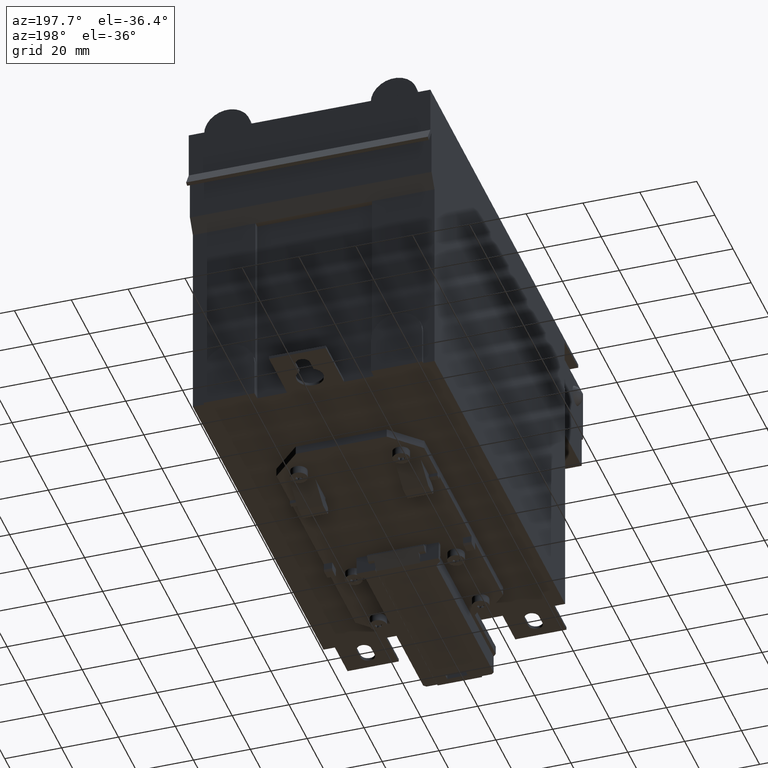
[diagram: clean part render]
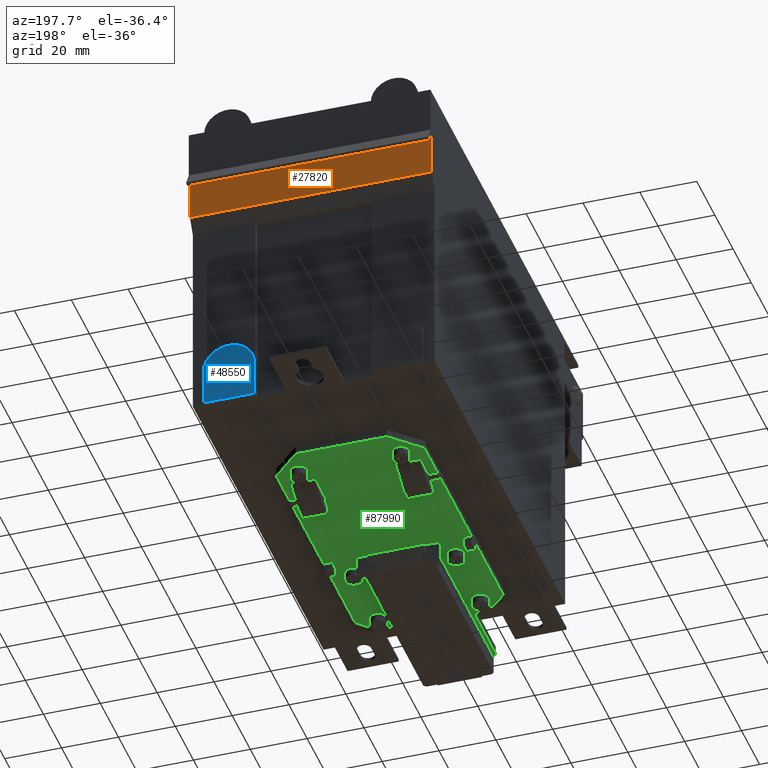
[diagram: same view with three faces highlighted in distinct colors, each labeled with its STEP entity id]
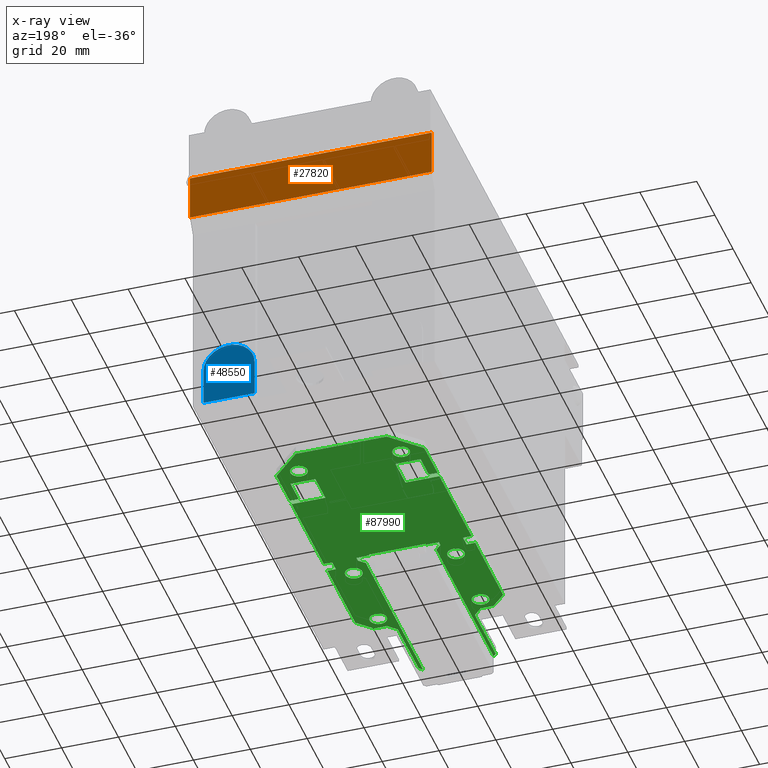
[diagram: x-ray of the same camera — body ghosted, the three highlighted faces saturated]
A machine part, auxiliary view with three faces highlighted in distinct colors.
The next image is the same camera in x-ray (body ghosted, the three faces saturated) — at least one of them is partly hidden behind the body in this view.
Their STEP definitions:

[orange] entity #27820 — the highlighted planar face has unit normal (0, 1, -0).
#18350=CARTESIAN_POINT('',(42.5,91.75,-146.2565865962));
#18360=VERTEX_POINT('',#18350);
#18390=CARTESIAN_POINT('',(42.5,0.,-146.2565865962));
#18400=DIRECTION('',(0.,-1.,0.));
#18410=VECTOR('',#18400,1.);
#18420=LINE('',#18390,#18410);
#18430=CARTESIAN_POINT('',(42.5,75.4609170961234,-146.2565865962));
#18440=VERTEX_POINT('',#18430);
#18450=EDGE_CURVE('',#18360,#18440,#18420,.T.);
#21940=CARTESIAN_POINT('',(-42.5,75.4609170961234,-146.2565865962));
#21950=VERTEX_POINT('',#21940);
#21980=CARTESIAN_POINT('',(-42.5,0.,-146.2565865962));
#21990=DIRECTION('',(0.,1.,0.));
#22000=VECTOR('',#21990,1.);
#22010=LINE('',#21980,#22000);
#22020=CARTESIAN_POINT('',(-42.5,91.75,-146.2565865962));
#22030=VERTEX_POINT('',#22020);
#22040=EDGE_CURVE('',#21950,#22030,#22010,.T.);
#27610=CARTESIAN_POINT('',(44.6251071,75.0535829235264,-146.2565865962))
;
#27620=DIRECTION('',(0.,0.,-1.));
#27630=DIRECTION('',(-1.,0.,0.));
#27640=AXIS2_PLACEMENT_3D('',#27610,#27620,#27630);
#27650=PLANE('',#27640);
#27660=ORIENTED_EDGE('',*,*,#22040,.T.);
#27670=CARTESIAN_POINT('',(0.,75.4609170961234,-146.2565865962));
#27680=DIRECTION('',(-1.,0.,0.));
#27690=VECTOR('',#27680,1.);
#27700=LINE('',#27670,#27690);
#27710=EDGE_CURVE('',#18440,#21950,#27700,.T.);
#27720=ORIENTED_EDGE('',*,*,#27710,.T.);
#27730=ORIENTED_EDGE('',*,*,#18450,.T.);
#27740=CARTESIAN_POINT('',(0.,91.75,-146.2565865962));
#27750=DIRECTION('',(-1.,0.,0.));
#27760=VECTOR('',#27750,1.);
#27770=LINE('',#27740,#27760);
#27780=EDGE_CURVE('',#18360,#22030,#27770,.T.);
#27790=ORIENTED_EDGE('',*,*,#27780,.F.);
#27800=EDGE_LOOP('',(#27790,#27730,#27720,#27660));
#27810=FACE_OUTER_BOUND('',#27800,.T.);
#27820=ADVANCED_FACE('',(#27810),#27650,.T.);

[blue] entity #48550 — the highlighted planar face has unit normal (0, 1, -0).
#42260=CARTESIAN_POINT('',(20.5,-1.,-144.));
#42270=VERTEX_POINT('',#42260);
#42300=CARTESIAN_POINT('',(20.5,0.,-144.));
#42310=DIRECTION('',(0.,-1.,0.));
#42320=VECTOR('',#42310,1.);
#42330=LINE('',#42300,#42320);
#42340=CARTESIAN_POINT('',(20.5,12.,-144.));
#42350=VERTEX_POINT('',#42340);
#42360=EDGE_CURVE('',#42350,#42270,#42330,.T.);
#47700=CARTESIAN_POINT('',(38.5,12.,-144.));
#47710=VERTEX_POINT('',#47700);
#47760=CARTESIAN_POINT('',(38.5,0.,-144.));
#47770=DIRECTION('',(0.,1.,0.));
#47780=VECTOR('',#47770,1.);
#47790=LINE('',#47760,#47780);
#47800=CARTESIAN_POINT('',(38.5,-1.,-144.));
#47810=VERTEX_POINT('',#47800);
#47820=EDGE_CURVE('',#47810,#47710,#47790,.T.);
#48140=CARTESIAN_POINT('',(29.5,12.,-144.));
#48150=DIRECTION('',(0.,0.,-1.));
#48160=DIRECTION('',(-1.,0.,0.));
#48170=AXIS2_PLACEMENT_3D('',#48140,#48150,#48160);
#48180=CIRCLE('',#48170,9.00000000000003);
#48190=EDGE_CURVE('',#42350,#47710,#48180,.T.);
#48390=CARTESIAN_POINT('',(38.9501071,-1.5501071,-144.));
#48400=DIRECTION('',(0.,0.,-1.));
#48410=DIRECTION('',(-1.,0.,0.));
#48420=AXIS2_PLACEMENT_3D('',#48390,#48400,#48410);
#48430=PLANE('',#48420);
#48440=ORIENTED_EDGE('',*,*,#47820,.F.);
#48450=ORIENTED_EDGE('',*,*,#48190,.T.);
#48460=ORIENTED_EDGE('',*,*,#42360,.F.);
#48470=CARTESIAN_POINT('',(0.,-1.,-144.));
#48480=DIRECTION('',(-1.,0.,0.));
#48490=VECTOR('',#48480,1.);
#48500=LINE('',#48470,#48490);
#48510=EDGE_CURVE('',#47810,#42270,#48500,.T.);
#48520=ORIENTED_EDGE('',*,*,#48510,.T.);
#48530=EDGE_LOOP('',(#48520,#48460,#48450,#48440));
#48540=FACE_OUTER_BOUND('',#48530,.T.);
#48550=ADVANCED_FACE('',(#48540),#48430,.T.);

[green] entity #87990 — the highlighted planar face has unit normal (-0, 0, -1).
#80450=CARTESIAN_POINT('',(14.1117749006083,-4.00022214599537,
-6.16177490060838));
#80460=VERTEX_POINT('',#80450);
#80490=CARTESIAN_POINT('',(14.1117749006083,-4.00022214599537,
-54.6975753978305));
#80500=DIRECTION('',(1.22407328372272E-16,-1.50463276784806E-36,1.));
#80510=VECTOR('',#80500,1.);
#80520=LINE('',#80490,#80510);
#80530=CARTESIAN_POINT('',(14.1117749006083,-4.00022214599537,
16.8382250993925));
#80540=VERTEX_POINT('',#80530);
#80550=EDGE_CURVE('',#80460,#80540,#80520,.T.);
#80820=CARTESIAN_POINT('',(26.5,-4.00022214599537,-14.0499999999995));
#80830=VERTEX_POINT('',#80820);
#80910=CARTESIAN_POINT('',(26.5,-4.00022214599537,-101.050000000001));
#80920=VERTEX_POINT('',#80910);
#80950=CARTESIAN_POINT('',(26.5,-4.00022214599537,-77.6975753978313));
#80960=DIRECTION('',(1.22407328372272E-16,-1.50463276784806E-36,1.));
#80970=VECTOR('',#80960,1.);
#80980=LINE('',#80950,#80970);
#80990=CARTESIAN_POINT('',(26.5,-4.00022214599537,-86.3999999999999));
#81000=VERTEX_POINT('',#80990);
#81010=EDGE_CURVE('',#80920,#81000,#80980,.T.);
#81230=CARTESIAN_POINT('',(26.5,-4.00022214599537,-84.4));
#81240=VERTEX_POINT('',#81230);
#81270=CARTESIAN_POINT('',(26.5,-4.00022214599537,-48.8999999999999));
#81280=VERTEX_POINT('',#81270);
#81290=EDGE_CURVE('',#81240,#81280,#80980,.T.);
#81590=CARTESIAN_POINT('',(26.5,-4.00022214599537,-44.9009137594714));
#81600=VERTEX_POINT('',#81590);
#81630=EDGE_CURVE('',#81600,#80830,#80980,.T.);
#81860=CARTESIAN_POINT('',(16.5000000000006,-4.00022214599537,-111.05));
#81870=VERTEX_POINT('',#81860);
#81900=CARTESIAN_POINT('',(-5.44921508560037,-4.00022214599531,
-132.999215085602));
#81910=DIRECTION('',(0.707106781186541,-1.06393603334085E-36,
0.707106781186554));
#81920=VECTOR('',#81910,1.);
#81930=LINE('',#81900,#81920);
#81940=EDGE_CURVE('',#81870,#80920,#81930,.T.);
#82110=CARTESIAN_POINT('',(-25.5000000100264,-4.00022214599537,
-77.3911733980513));
#82120=DIRECTION('',(-1.22464679914735E-16,1.50463276784806E-36,-1.));
#82130=VECTOR('',#82120,1.);
#82140=LINE('',#82110,#82130);
#82150=CARTESIAN_POINT('',(-25.5,-4.00022214599537,-14.0500000100259));
#82160=VERTEX_POINT('',#82150);
#82170=CARTESIAN_POINT('',(-25.5,-4.00022214599537,-44.9009137594714));
#82180=VERTEX_POINT('',#82170);
#82190=EDGE_CURVE('',#82160,#82180,#82140,.T.);
#82490=CARTESIAN_POINT('',(-25.5,-4.00022214599537,-48.8999999999999));
#82500=VERTEX_POINT('',#82490);
#82530=CARTESIAN_POINT('',(-25.5,-4.00022214599537,-84.4));
#82540=VERTEX_POINT('',#82530);
#82550=EDGE_CURVE('',#82500,#82540,#82140,.T.);
#82770=CARTESIAN_POINT('',(-25.5,-4.00022214599537,-86.3999999999998));
#82780=VERTEX_POINT('',#82770);
#82810=CARTESIAN_POINT('',(-25.5,-4.00022214599537,-101.050000000001));
#82820=VERTEX_POINT('',#82810);
#82830=EDGE_CURVE('',#82780,#82820,#82140,.T.);
#83130=CARTESIAN_POINT('',(6.44921508560037,-4.00022214599537,
-132.999215085602));
#83140=DIRECTION('',(-0.707106781186541,-1.06393603334085E-36,
0.707106781186554));
#83150=VECTOR('',#83140,1.);
#83160=LINE('',#83130,#83150);
#83170=CARTESIAN_POINT('',(-15.5000000000007,-4.00022214599537,-111.05))
;
#83180=VERTEX_POINT('',#83170);
#83190=EDGE_CURVE('',#83180,#82820,#83160,.T.);
#83460=CARTESIAN_POINT('',(-34.5,-4.00022214599537,-111.05));
#83470=DIRECTION('',(1.,1.84178077293658E-52,-1.22407328372272E-16));
#83480=VECTOR('',#83470,1.);
#83490=LINE('',#83460,#83480);
#83500=EDGE_CURVE('',#83180,#81870,#83490,.T.);
#83680=CARTESIAN_POINT('',(35.5,-4.00022214599537,46.9499999999972));
#83690=DIRECTION('',(0.707106781186566,-1.06393603334082E-36,
0.707106781186529));
#83700=VECTOR('',#83690,1.);
#83710=LINE('',#83680,#83700);
#83720=CARTESIAN_POINT('',(-20.5000000000004,-4.00022214599537,
-9.05000000000022));
#83730=VERTEX_POINT('',#83720);
#83740=EDGE_CURVE('',#82160,#83730,#83710,.T.);
#83990=CARTESIAN_POINT('',(-12.,-4.00022214599537,-5.05000000000003));
#84000=DIRECTION('',(-0.707106781186548,1.06393603334084E-36,
-0.707106781186548));
#84010=VECTOR('',#84000,1.);
#84020=LINE('',#83990,#84010);
#84030=CARTESIAN_POINT('',(-12.9882250993917,-4.00022214599537,
-6.03822509939167));
#84040=VERTEX_POINT('',#84030);
#84050=CARTESIAN_POINT('',(-16.,-4.00022214599537,-9.05000000000022));
#84060=VERTEX_POINT('',#84050);
#84070=EDGE_CURVE('',#84040,#84060,#84020,.T.);
#84320=CARTESIAN_POINT('',(6.27500000000001,-4.00022214599537,
-91.6979357417902));
#84330=DIRECTION('',(0.,-1.,-1.50463276784806E-36));
#84340=DIRECTION('',(-1.,-1.84178077293658E-52,1.22407328372272E-16));
#84350=AXIS2_PLACEMENT_3D('',#84320,#84330,#84340);
#84360=PLANE('',#84350);
#84370=CARTESIAN_POINT('',(-17.5000000000004,-4.00022214599537,
-101.399999996707));
#84380=DIRECTION('',(-9.07119968462105E-22,-1.,5.37103078904428E-16));
#84390=DIRECTION('',(-0.923735955844452,2.05727362229125E-16,
0.383029873352114));
#84400=AXIS2_PLACEMENT_3D('',#84370,#84380,#84390);
#84410=CIRCLE('',#84400,3.00000000000001);
#84420=CARTESIAN_POINT('',(-20.2712078675337,-4.00022214599537,
-100.250910376651));
#84430=VERTEX_POINT('',#84420);
#84440=CARTESIAN_POINT('',(-14.728792132467,-4.00022214599537,
-102.549089616763));
#84450=VERTEX_POINT('',#84440);
#84460=EDGE_CURVE('',#84430,#84450,#84410,.T.);
#84470=ORIENTED_EDGE('',*,*,#84460,.F.);
#84480=EDGE_CURVE('',#84450,#84430,#84410,.T.);
#84490=ORIENTED_EDGE('',*,*,#84480,.F.);
#84500=EDGE_LOOP('',(#84490,#84470));
#84510=FACE_BOUND('',#84500,.T.);
#84520=CARTESIAN_POINT('',(18.4999999999997,-4.00022214599537,
-101.399999996707));
#84530=DIRECTION('',(-9.07119968462105E-22,-1.,5.37103078904428E-16));
#84540=DIRECTION('',(-0.923735955844452,2.05727362229125E-16,
0.383029873352114));
#84550=AXIS2_PLACEMENT_3D('',#84520,#84530,#84540);
#84560=CIRCLE('',#84550,3.00000000000001);
#84570=CARTESIAN_POINT('',(15.7287921324663,-4.00022214599537,
-100.250910376651));
#84580=VERTEX_POINT('',#84570);
#84590=CARTESIAN_POINT('',(21.2712078675331,-4.00022214599537,
-102.549089616763));
#84600=VERTEX_POINT('',#84590);
#84610=EDGE_CURVE('',#84580,#84600,#84560,.T.);
#84620=ORIENTED_EDGE('',*,*,#84610,.F.);
#84630=EDGE_CURVE('',#84600,#84580,#84560,.T.);
#84640=ORIENTED_EDGE('',*,*,#84630,.F.);
#84650=EDGE_LOOP('',(#84640,#84620));
#84660=FACE_BOUND('',#84650,.T.);
#84670=CARTESIAN_POINT('',(-17.5000000000037,-4.00022214599537,
-13.899999996705));
#84680=DIRECTION('',(-9.07119968462105E-22,-1.,5.37103078904428E-16));
#84690=DIRECTION('',(-0.923735955844452,2.05727362229125E-16,
0.383029873352114));
#84700=AXIS2_PLACEMENT_3D('',#84670,#84680,#84690);
#84710=CIRCLE('',#84700,3.00000000000001);
#84720=CARTESIAN_POINT('',(-20.271207867537,-4.00022214599537,
-12.7509103766487));
#84730=VERTEX_POINT('',#84720);
#84740=CARTESIAN_POINT('',(-14.7287921324703,-4.00022214599537,
-15.0490896167614));
#84750=VERTEX_POINT('',#84740);
#84760=EDGE_CURVE('',#84730,#84750,#84710,.T.);
#84770=ORIENTED_EDGE('',*,*,#84760,.F.);
#84780=EDGE_CURVE('',#84750,#84730,#84710,.T.);
#84790=ORIENTED_EDGE('',*,*,#84780,.F.);
#84800=EDGE_LOOP('',(#84790,#84770));
#84810=FACE_BOUND('',#84800,.T.);
#84820=CARTESIAN_POINT('',(18.4999999999997,-4.00022214599537,
-40.8999999967066));
#84830=DIRECTION('',(-9.07119968462105E-22,-1.,5.37103078904428E-16));
#84840=DIRECTION('',(-0.383029873352114,-4.96141078524734E-16,
-0.923735955844452));
#84850=AXIS2_PLACEMENT_3D('',#84820,#84830,#84840);
#84860=CIRCLE('',#84850,3.);
#84870=CARTESIAN_POINT('',(17.3509103799434,-4.00022214599537,
-43.67120786424));
#84880=VERTEX_POINT('',#84870);
#84890=CARTESIAN_POINT('',(19.6490896200561,-4.00022214599537,
-38.1287921291733));
#84900=VERTEX_POINT('',#84890);
#84910=EDGE_CURVE('',#84880,#84900,#84860,.T.);
#84920=ORIENTED_EDGE('',*,*,#84910,.F.);
#84930=EDGE_CURVE('',#84900,#84880,#84860,.T.);
#84940=ORIENTED_EDGE('',*,*,#84930,.F.);
#84950=EDGE_LOOP('',(#84940,#84920));
#84960=FACE_BOUND('',#84950,.T.);
#84970=CARTESIAN_POINT('',(18.5,-4.00022214599537,-13.9));
#84980=DIRECTION('',(0.,1.,1.50463276784806E-36));
#84990=DIRECTION('',(1.,0.,0.));
#85000=AXIS2_PLACEMENT_3D('',#84970,#84980,#84990);
#85010=CIRCLE('',#85000,3.);
#85020=CARTESIAN_POINT('',(21.5,-4.00022214599537,-13.9));
#85030=VERTEX_POINT('',#85020);
#85040=CARTESIAN_POINT('',(15.5,-4.00022214599537,-13.9));
#85050=VERTEX_POINT('',#85040);
#85060=EDGE_CURVE('',#85030,#85050,#85010,.T.);
#85070=ORIENTED_EDGE('',*,*,#85060,.T.);
#85080=EDGE_CURVE('',#85050,#85030,#85010,.T.);
#85090=ORIENTED_EDGE('',*,*,#85080,.T.);
#85100=EDGE_LOOP('',(#85090,#85070));
#85110=FACE_BOUND('',#85100,.T.);
#85120=CARTESIAN_POINT('',(-17.5000000000003,-4.00022214599537,
-40.8999999967066));
#85130=DIRECTION('',(-9.07119968462105E-22,-1.,5.37103078904428E-16));
#85140=DIRECTION('',(-0.923735955844452,2.05727362229125E-16,
0.383029873352114));
#85150=AXIS2_PLACEMENT_3D('',#85120,#85130,#85140);
#85160=CIRCLE('',#85150,3.00000000000001);
#85170=CARTESIAN_POINT('',(-20.2712078675336,-4.00022214599537,
-39.7509103766503));
#85180=VERTEX_POINT('',#85170);
#85190=CARTESIAN_POINT('',(-14.7287921324669,-4.00022214599537,
-42.049089616763));
#85200=VERTEX_POINT('',#85190);
#85210=EDGE_CURVE('',#85180,#85200,#85160,.T.);
#85220=ORIENTED_EDGE('',*,*,#85210,.F.);
#85230=EDGE_CURVE('',#85200,#85180,#85160,.T.);
#85240=ORIENTED_EDGE('',*,*,#85230,.F.);
#85250=EDGE_LOOP('',(#85240,#85220));
#85260=FACE_BOUND('',#85250,.T.);
#85270=CARTESIAN_POINT('',(25.15,-4.00022214599537,-84.4));
#85280=DIRECTION('',(-1.,-1.84178077293658E-52,1.22407328372272E-16));
#85290=VECTOR('',#85280,1.);
#85300=LINE('',#85270,#85290);
#85310=CARTESIAN_POINT('',(14.5872753246417,-4.00022214599537,-84.4));
#85320=VERTEX_POINT('',#85310);
#85330=EDGE_CURVE('',#81240,#85320,#85300,.T.);
#85340=ORIENTED_EDGE('',*,*,#85330,.F.);
#85350=CARTESIAN_POINT('',(14.5872753246417,-4.00022214599537,
-107.351532573862));
#85360=DIRECTION('',(-1.22464679914735E-16,1.50463276784806E-36,-1.));
#85370=VECTOR('',#85360,1.);
#85380=LINE('',#85350,#85370);
#85390=CARTESIAN_POINT('',(14.5872753246417,-4.00022214599537,
-95.4000000000002));
#85400=VERTEX_POINT('',#85390);
#85410=EDGE_CURVE('',#85320,#85400,#85380,.T.);
#85420=ORIENTED_EDGE('',*,*,#85410,.F.);
#85430=CARTESIAN_POINT('',(25.15,-4.00022214599537,-95.4000000000003));
#85440=DIRECTION('',(-1.,-1.84178077293658E-52,1.22407328372272E-16));
#85450=VECTOR('',#85440,1.);
#85460=LINE('',#85430,#85450);
#85470=CARTESIAN_POINT('',(23.3164998132767,-4.00022214599537,
-95.4000000000002));
#85480=VERTEX_POINT('',#85470);
#85490=EDGE_CURVE('',#85480,#85400,#85460,.T.);
#85500=ORIENTED_EDGE('',*,*,#85490,.T.);
#85510=CARTESIAN_POINT('',(23.3164998132767,-4.00022214599531,
-107.351532573862));
#85520=DIRECTION('',(-1.22464679914735E-16,1.50463276784806E-36,-1.));
#85530=VECTOR('',#85520,1.);
#85540=LINE('',#85510,#85530);
#85550=CARTESIAN_POINT('',(23.3164998132767,-4.00022214599537,
-86.3999999999999));
#85560=VERTEX_POINT('',#85550);
#85570=EDGE_CURVE('',#85560,#85480,#85540,.T.);
#85580=ORIENTED_EDGE('',*,*,#85570,.T.);
#85590=CARTESIAN_POINT('',(25.15,-4.00022214599537,-86.3999999999999));
#85600=DIRECTION('',(1.,1.84178077293658E-52,-1.22407328372272E-16));
#85610=VECTOR('',#85600,1.);
#85620=LINE('',#85590,#85610);
#85630=EDGE_CURVE('',#85560,#81000,#85620,.T.);
#85640=ORIENTED_EDGE('',*,*,#85630,.F.);
#85650=ORIENTED_EDGE('',*,*,#81010,.T.);
#85660=ORIENTED_EDGE('',*,*,#81940,.T.);
#85670=ORIENTED_EDGE('',*,*,#83500,.T.);
#85680=ORIENTED_EDGE('',*,*,#83190,.F.);
#85690=ORIENTED_EDGE('',*,*,#82830,.T.);
#85700=CARTESIAN_POINT('',(25.15,-4.00022214599537,-86.3999999999999));
#85710=DIRECTION('',(1.,1.84178077293658E-52,-1.22407328372272E-16));
#85720=VECTOR('',#85710,1.);
#85730=LINE('',#85700,#85720);
#85740=CARTESIAN_POINT('',(-22.4127246753596,-4.00022214599537,
-86.3999999999998));
#85750=VERTEX_POINT('',#85740);
#85760=EDGE_CURVE('',#82780,#85750,#85730,.T.);
#85770=ORIENTED_EDGE('',*,*,#85760,.F.);
#85780=CARTESIAN_POINT('',(-22.4127246753596,-4.00022214599531,
-107.351532573862));
#85790=DIRECTION('',(-1.22464679914735E-16,1.50463276784806E-36,-1.));
#85800=VECTOR('',#85790,1.);
#85810=LINE('',#85780,#85800);
#85820=CARTESIAN_POINT('',(-22.4127246753596,-4.00022214599537,
-95.4000000000001));
#85830=VERTEX_POINT('',#85820);
#85840=EDGE_CURVE('',#85750,#85830,#85810,.T.);
#85850=ORIENTED_EDGE('',*,*,#85840,.F.);
#85860=CARTESIAN_POINT('',(25.15,-4.00022214599537,-95.4000000000003));
#85870=DIRECTION('',(-1.,-1.84178077293658E-52,1.22407328372272E-16));
#85880=VECTOR('',#85870,1.);
#85890=LINE('',#85860,#85880);
#85900=CARTESIAN_POINT('',(-13.5872753246417,-4.00022214599537,
-95.4000000000001));
#85910=VERTEX_POINT('',#85900);
#85920=EDGE_CURVE('',#85910,#85830,#85890,.T.);
#85930=ORIENTED_EDGE('',*,*,#85920,.T.);
#85940=CARTESIAN_POINT('',(-13.5872753246417,-4.00022214599531,
-107.351532573862));
#85950=DIRECTION('',(-1.22464679914735E-16,1.50463276784806E-36,-1.));
#85960=VECTOR('',#85950,1.);
#85970=LINE('',#85940,#85960);
#85980=CARTESIAN_POINT('',(-13.5872753246417,-4.00022214599537,-84.4));
#85990=VERTEX_POINT('',#85980);
#86000=EDGE_CURVE('',#85990,#85910,#85970,.T.);
#86010=ORIENTED_EDGE('',*,*,#86000,.T.);
#86020=CARTESIAN_POINT('',(25.15,-4.00022214599537,-84.4));
#86030=DIRECTION('',(1.,1.84178077293658E-52,-1.22407328372272E-16));
#86040=VECTOR('',#86030,1.);
#86050=LINE('',#86020,#86040);
#86060=EDGE_CURVE('',#82540,#85990,#86050,.T.);
#86070=ORIENTED_EDGE('',*,*,#86060,.T.);
#86080=ORIENTED_EDGE('',*,*,#82550,.T.);
#86090=CARTESIAN_POINT('',(35.5,-4.00022214599537,-48.8999999999999));
#86100=DIRECTION('',(1.,1.84178077293658E-52,-1.22407328372272E-16));
#86110=VECTOR('',#86100,1.);
#86120=LINE('',#86090,#86110);
#86130=CARTESIAN_POINT('',(-22.5000000000004,-4.00022214599537,
-48.8999999999999));
#86140=VERTEX_POINT('',#86130);
#86150=EDGE_CURVE('',#82500,#86140,#86120,.T.);
#86160=ORIENTED_EDGE('',*,*,#86150,.F.);
#86170=CARTESIAN_POINT('',(-22.5000000000005,-4.00022214599531,
-132.999215085602));
#86180=DIRECTION('',(-1.22464679914735E-16,1.50463276784806E-36,-1.));
#86190=VECTOR('',#86180,1.);
#86200=LINE('',#86170,#86190);
#86210=CARTESIAN_POINT('',(-22.5000000000005,-4.00022214599537,-44.9));
#86220=VERTEX_POINT('',#86210);
#86230=EDGE_CURVE('',#86220,#86140,#86200,.T.);
#86240=ORIENTED_EDGE('',*,*,#86230,.T.);
#86250=CARTESIAN_POINT('',(35.5,-4.00022214599537,-44.8823339835539));
#86260=DIRECTION('',(-0.999999953613538,4.58290792916117E-40,
-0.000304586476321109));
#86270=VECTOR('',#86260,1.);
#86280=LINE('',#86250,#86270);
#86290=EDGE_CURVE('',#86220,#82180,#86280,.T.);
#86300=ORIENTED_EDGE('',*,*,#86290,.F.);
#86310=ORIENTED_EDGE('',*,*,#82190,.T.);
#86320=ORIENTED_EDGE('',*,*,#83740,.F.);
#86330=CARTESIAN_POINT('',(35.5,-4.00022214599537,-9.05000000000025));
#86340=DIRECTION('',(1.,1.84178077293658E-52,-1.22407328372272E-16));
#86350=VECTOR('',#86340,1.);
#86360=LINE('',#86330,#86350);
#86370=EDGE_CURVE('',#83730,#84060,#86360,.T.);
#86380=ORIENTED_EDGE('',*,*,#86370,.F.);
#86390=ORIENTED_EDGE('',*,*,#84070,.T.);
#86400=CARTESIAN_POINT('',(-12.9882250993917,-4.00022214599537,
-54.6975753978305));
#86410=DIRECTION('',(-1.22407328372272E-16,1.50463276784806E-36,-1.));
#86420=VECTOR('',#86410,1.);
#86430=LINE('',#86400,#86420);
#86440=CARTESIAN_POINT('',(-12.9882250993917,-4.00022214599537,
16.9617749006092));
#86450=VERTEX_POINT('',#86440);
#86460=EDGE_CURVE('',#86450,#84040,#86430,.T.);
#86470=ORIENTED_EDGE('',*,*,#86460,.T.);
#86480=CARTESIAN_POINT('',(35.5,-4.00022214599537,65.449999999999));
#86490=DIRECTION('',(0.707106781186561,-1.06393603334083E-36,
0.707106781186534));
#86500=VECTOR('',#86490,1.);
#86510=LINE('',#86480,#86500);
#86520=CARTESIAN_POINT('',(-11.8847965714739,-4.00022214599537,
18.0652034285269));
#86530=VERTEX_POINT('',#86520);
#86540=EDGE_CURVE('',#86450,#86530,#86510,.T.);
#86550=ORIENTED_EDGE('',*,*,#86540,.F.);
#86560=CARTESIAN_POINT('',(-11.8847965714739,-4.00022214599537,
-132.999215085602));
#86570=DIRECTION('',(-1.22464679914735E-16,1.50463276784806E-36,-1.));
#86580=VECTOR('',#86570,1.);
#86590=LINE('',#86560,#86580);
#86600=CARTESIAN_POINT('',(-11.8847965714739,-4.00022214599537,
-45.1477188225269));
#86610=VERTEX_POINT('',#86600);
#86620=EDGE_CURVE('',#86530,#86610,#86590,.T.);
#86630=ORIENTED_EDGE('',*,*,#86620,.F.);
#86640=CARTESIAN_POINT('',(-99.7362928345372,-4.00022214599537,
-132.999215085602));
#86650=DIRECTION('',(-0.707106781186502,1.06393603334091E-36,
-0.707106781186593));
#86660=VECTOR('',#86650,1.);
#86670=LINE('',#86640,#86660);
#86680=CARTESIAN_POINT('',(-14.0000000000004,-4.00022214599537,
-47.2629222510536));
#86690=VERTEX_POINT('',#86680);
#86700=EDGE_CURVE('',#86610,#86690,#86670,.T.);
#86710=ORIENTED_EDGE('',*,*,#86700,.F.);
#86720=CARTESIAN_POINT('',(-14.0000000000004,-4.00022214599531,
-132.999215085602));
#86730=DIRECTION('',(1.22464679914735E-16,-1.50463276784806E-36,1.));
#86740=VECTOR('',#86730,1.);
#86750=LINE('',#86720,#86740);
#86760=CARTESIAN_POINT('',(-14.0000000000004,-4.00022214599537,
-48.8999999999999));
#86770=VERTEX_POINT('',#86760);
#86780=EDGE_CURVE('',#86770,#86690,#86750,.T.);
#86790=ORIENTED_EDGE('',*,*,#86780,.T.);
#86800=CARTESIAN_POINT('',(35.5,-4.00022214599537,-48.8999999999999));
#86810=DIRECTION('',(-1.,-1.84178077293658E-52,1.22407328372272E-16));
#86820=VECTOR('',#86810,1.);
#86830=LINE('',#86800,#86820);
#86840=CARTESIAN_POINT('',(-9.5,-4.00022214599537,-48.8999999999999));
#86850=VERTEX_POINT('',#86840);
#86860=EDGE_CURVE('',#86850,#86770,#86830,.T.);
#86870=ORIENTED_EDGE('',*,*,#86860,.T.);
#86880=CARTESIAN_POINT('',(-9.5,-4.00022214599537,-132.999215085602));
#86890=DIRECTION('',(-1.22464679914735E-16,1.50463276784806E-36,-1.));
#86900=VECTOR('',#86890,1.);
#86910=LINE('',#86880,#86900);
#86920=CARTESIAN_POINT('',(-9.5,-4.00022214599537,-49.4000000000002));
#86930=VERTEX_POINT('',#86920);
#86940=EDGE_CURVE('',#86850,#86930,#86910,.T.);
#86950=ORIENTED_EDGE('',*,*,#86940,.F.);
#86960=CARTESIAN_POINT('',(-20.8,-4.00022214599537,-49.4000000000001));
#86970=DIRECTION('',(1.,1.84178077293658E-52,-1.22407328372272E-16));
#86980=VECTOR('',#86970,1.);
#86990=LINE('',#86960,#86980);
#87000=CARTESIAN_POINT('',(10.5,-4.00022214599537,-49.4000000000002));
#87010=VERTEX_POINT('',#87000);
#87020=EDGE_CURVE('',#86930,#87010,#86990,.T.);
#87030=ORIENTED_EDGE('',*,*,#87020,.F.);
#87040=CARTESIAN_POINT('',(10.5,-4.00022214599537,-132.999215085602));
#87050=DIRECTION('',(-1.22464679914735E-16,1.50463276784806E-36,-1.));
#87060=VECTOR('',#87050,1.);
#87070=LINE('',#87040,#87060);
#87080=CARTESIAN_POINT('',(10.5,-4.00022214599537,-48.8999999999999));
#87090=VERTEX_POINT('',#87080);
#87100=EDGE_CURVE('',#87090,#87010,#87070,.T.);
#87110=ORIENTED_EDGE('',*,*,#87100,.T.);
#87120=CARTESIAN_POINT('',(-34.5,-4.00022214599537,-48.8999999999999));
#87130=DIRECTION('',(1.,1.84178077293658E-52,-1.22407328372272E-16));
#87140=VECTOR('',#87130,1.);
#87150=LINE('',#87120,#87140);
#87160=CARTESIAN_POINT('',(15.0000000000004,-4.00022214599534,
-48.8999999999999));
#87170=VERTEX_POINT('',#87160);
#87180=EDGE_CURVE('',#87090,#87170,#87150,.T.);
#87190=ORIENTED_EDGE('',*,*,#87180,.F.);
#87200=CARTESIAN_POINT('',(15.0000000000004,-4.00022214599537,
-132.999215085602));
#87210=DIRECTION('',(1.22464679914735E-16,-1.50463276784806E-36,1.));
#87220=VECTOR('',#87210,1.);
#87230=LINE('',#87200,#87220);
#87240=CARTESIAN_POINT('',(15.0000000000004,-4.00022214599534,
-47.2629222510536));
#87250=VERTEX_POINT('',#87240);
#87260=EDGE_CURVE('',#87170,#87250,#87230,.T.);
#87270=ORIENTED_EDGE('',*,*,#87260,.F.);
#87280=CARTESIAN_POINT('',(100.736292834537,-4.00022214599537,
-132.999215085602));
#87290=DIRECTION('',(0.707106781186502,1.06393603334091E-36,
-0.707106781186594));
#87300=VECTOR('',#87290,1.);
#87310=LINE('',#87280,#87300);
#87320=CARTESIAN_POINT('',(12.8847965714739,-4.00022214599537,
-45.1477188225269));
#87330=VERTEX_POINT('',#87320);
#87340=EDGE_CURVE('',#87330,#87250,#87310,.T.);
#87350=ORIENTED_EDGE('',*,*,#87340,.T.);
#87360=CARTESIAN_POINT('',(12.8847965714739,-4.00022214599537,
-132.999215085602));
#87370=DIRECTION('',(-1.22464679914735E-16,1.50463276784806E-36,-1.));
#87380=VECTOR('',#87370,1.);
#87390=LINE('',#87360,#87380);
#87400=CARTESIAN_POINT('',(12.8847965714739,-4.00022214599537,
18.0652034285269));
#87410=VERTEX_POINT('',#87400);
#87420=EDGE_CURVE('',#87410,#87330,#87390,.T.);
#87430=ORIENTED_EDGE('',*,*,#87420,.T.);
#87440=CARTESIAN_POINT('',(-34.5,-4.00022214599537,65.4499999999991));
#87450=DIRECTION('',(-0.70710678118656,-1.06393603334083E-36,
0.707106781186535));
#87460=VECTOR('',#87450,1.);
#87470=LINE('',#87440,#87460);
#87480=EDGE_CURVE('',#80540,#87410,#87470,.T.);
#87490=ORIENTED_EDGE('',*,*,#87480,.T.);
#87500=ORIENTED_EDGE('',*,*,#80550,.T.);
#87510=CARTESIAN_POINT('',(17.,-4.00022214599537,-9.05000000000003));
#87520=DIRECTION('',(-0.707106781186548,-1.06393603334084E-36,
0.707106781186548));
#87530=VECTOR('',#87520,1.);
#87540=LINE('',#87510,#87530);
#87550=CARTESIAN_POINT('',(17.,-4.00022214599537,-9.05000000000025));
#87560=VERTEX_POINT('',#87550);
#87570=EDGE_CURVE('',#87560,#80460,#87540,.T.);
#87580=ORIENTED_EDGE('',*,*,#87570,.T.);
#87590=CARTESIAN_POINT('',(-34.5,-4.00022214599537,-9.05000000000022));
#87600=DIRECTION('',(-1.,-1.84178077293658E-52,1.22407328372272E-16));
#87610=VECTOR('',#87600,1.);
#87620=LINE('',#87590,#87610);
#87630=CARTESIAN_POINT('',(21.5000000000004,-4.00022214599537,
-9.05000000000025));
#87640=VERTEX_POINT('',#87630);
#87650=EDGE_CURVE('',#87640,#87560,#87620,.T.);
#87660=ORIENTED_EDGE('',*,*,#87650,.T.);
#87670=CARTESIAN_POINT('',(-34.5,-4.00022214599537,46.9499999999972));
#87680=DIRECTION('',(-0.707106781186566,-1.06393603334082E-36,
0.707106781186529));
#87690=VECTOR('',#87680,1.);
#87700=LINE('',#87670,#87690);
#87710=EDGE_CURVE('',#80830,#87640,#87700,.T.);
#87720=ORIENTED_EDGE('',*,*,#87710,.T.);
#87730=ORIENTED_EDGE('',*,*,#81630,.T.);
#87740=CARTESIAN_POINT('',(25.15,-4.00022214599537,-44.9009137594714));
#87750=DIRECTION('',(1.,1.84178077293658E-52,-1.22407328372272E-16));
#87760=VECTOR('',#87750,1.);
#87770=LINE('',#87740,#87760);
#87780=CARTESIAN_POINT('',(23.5000000000004,-4.00022214599534,
-44.9009137594714));
#87790=VERTEX_POINT('',#87780);
#87800=EDGE_CURVE('',#87790,#81600,#87770,.T.);
#87810=ORIENTED_EDGE('',*,*,#87800,.T.);
#87820=CARTESIAN_POINT('',(23.5000000000004,-4.00022214599531,
-132.999215085602));
#87830=DIRECTION('',(-1.22464679914735E-16,1.50463276784806E-36,-1.));
#87840=VECTOR('',#87830,1.);
#87850=LINE('',#87820,#87840);
#87860=CARTESIAN_POINT('',(23.5000000000004,-4.00022214599537,
-48.8999999999999));
#87870=VERTEX_POINT('',#87860);
#87880=EDGE_CURVE('',#87790,#87870,#87850,.T.);
#87890=ORIENTED_EDGE('',*,*,#87880,.F.);
#87900=CARTESIAN_POINT('',(-34.5,-4.00022214599537,-48.8999999999999));
#87910=DIRECTION('',(-1.,-1.84178077293658E-52,1.22407328372272E-16));
#87920=VECTOR('',#87910,1.);
#87930=LINE('',#87900,#87920);
#87940=EDGE_CURVE('',#81280,#87870,#87930,.T.);
#87950=ORIENTED_EDGE('',*,*,#87940,.T.);
#87960=ORIENTED_EDGE('',*,*,#81290,.T.);
#87970=EDGE_LOOP('',(#87960,#87950,#87890,#87810,#87730,#87720,#87660,
#87580,#87500,#87490,#87430,#87350,#87270,#87190,#87110,#87030,#86950,
#86870,#86790,#86710,#86630,#86550,#86470,#86390,#86380,#86320,#86310,
#86300,#86240,#86160,#86080,#86070,#86010,#85930,#85850,#85770,#85690,
#85680,#85670,#85660,#85650,#85640,#85580,#85500,#85420,#85340));
#87980=FACE_OUTER_BOUND('',#87970,.T.);
#87990=ADVANCED_FACE('',(#84510,#84660,#84810,#84960,#85110,#85260,
#87980),#84360,.T.);